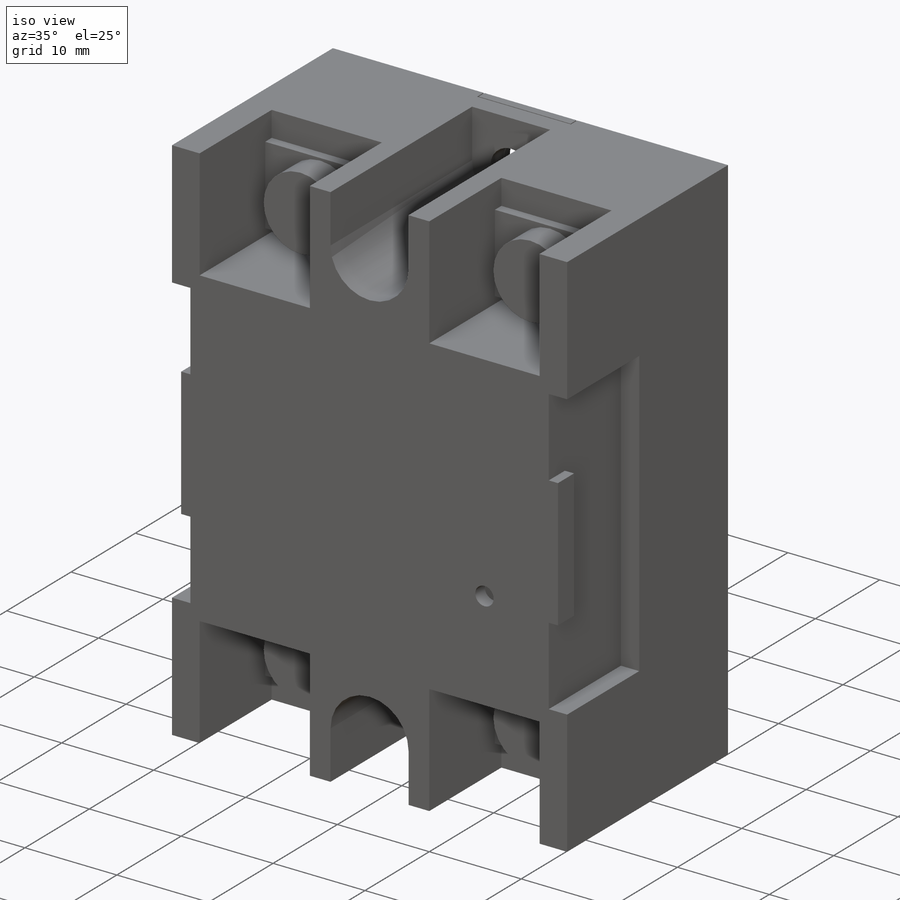
[diagram: iso view]
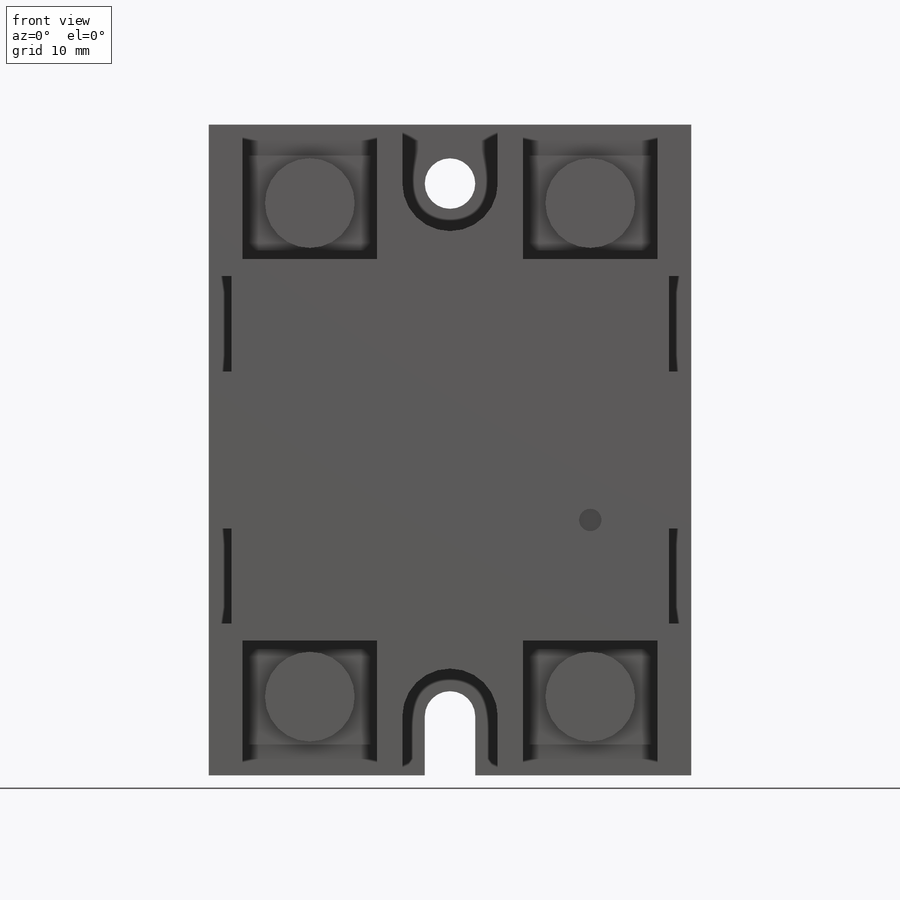
[diagram: front view]
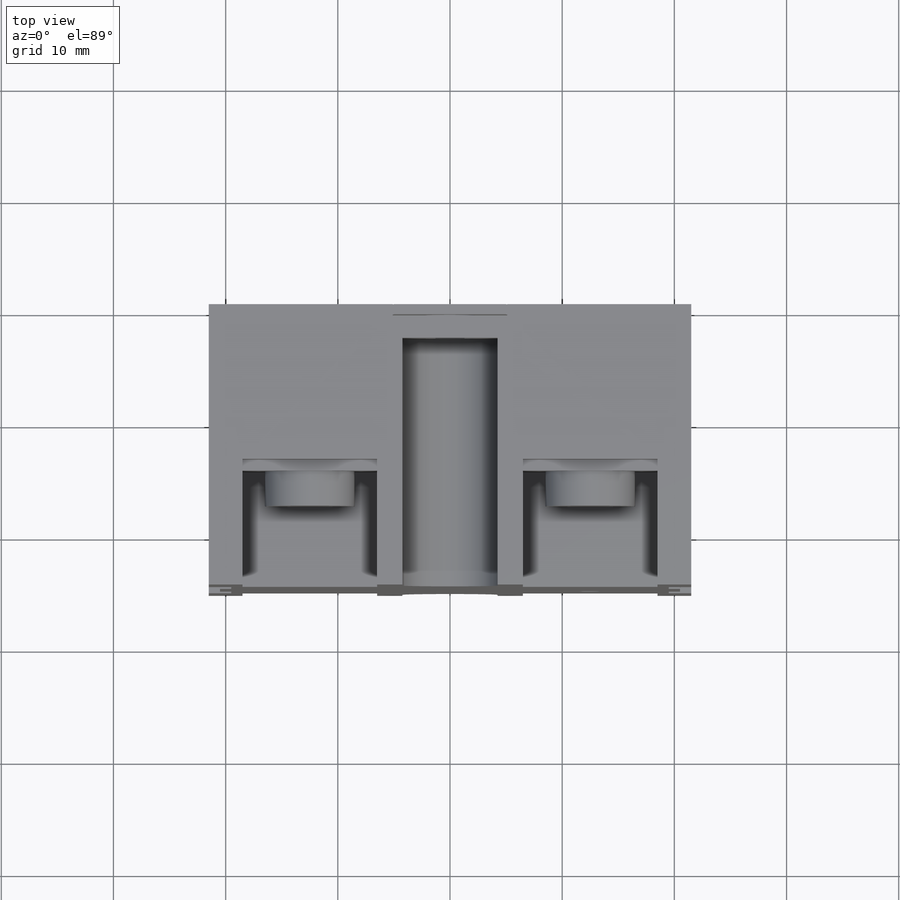
[diagram: top view]
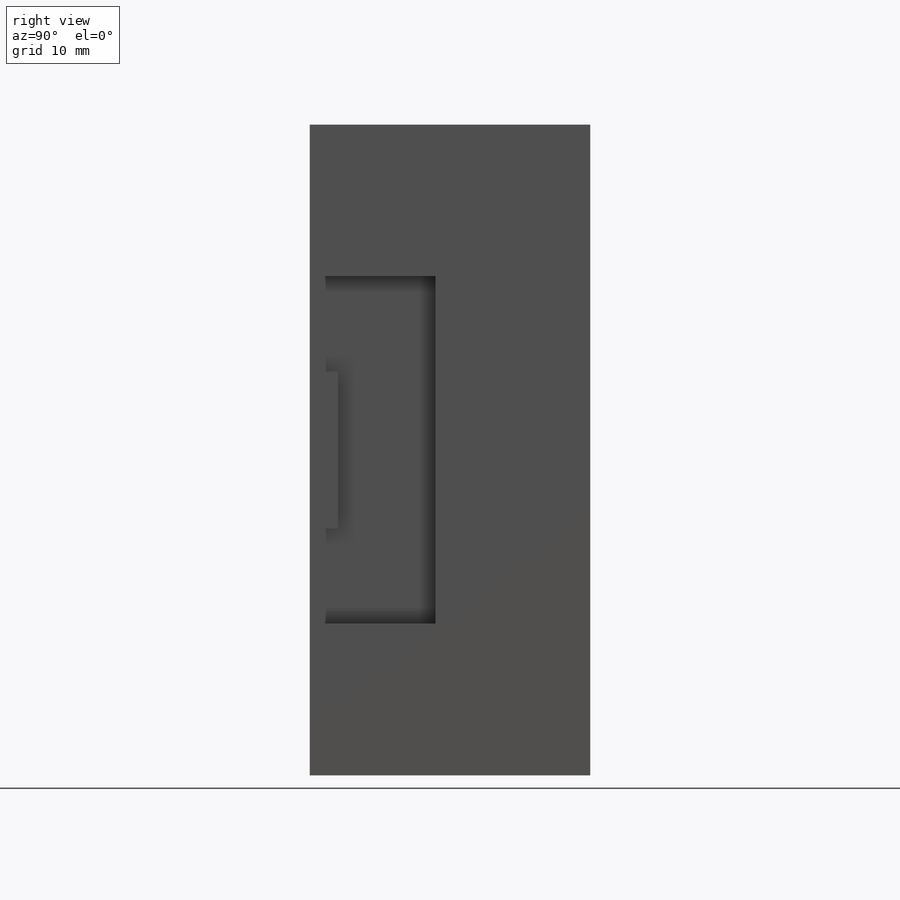
[diagram: right view]
SOLIDWORKS PART (.sldprt)
format: sldprt  version: not decoded by parser v0  size: 763,904 bytes
history: native  units: mm
features: sketch x36, extrude x14, cut_extrude x12, plane x5, revolve x4, hole x3, material x1 (+13 scaffold rows collapsed)
feature tree (88):
  scaffold x13  (default folders/planes/origin — collapsed)
  material  "Polyester Resin"
  plane  "Plane1"
  sketch  "Sketch1"
  extrude  "Boss-Extrude1"  Depth=1mm
  plane  "Plane2"  Offset=1mm
  sketch  "Sketch2"
  extrude  "Boss-Extrude2"  Depth=24mm
  sketch  "Sketch3"
  extrude  "Boss-Extrude3"  Depth=1mm
  sketch  "Sketch4"
  extrude  "Boss-Extrude4"  Depth=1mm
  sketch  "Sketch5"
  extrude  "Boss-Extrude5"  Depth=1mm
  plane  "Plane3"  Offset=1mm
  sketch  "Sketch6"
  cut_extrude  "Cut-Extrude1"  Depth=0.1mm
  sketch  "Sketch7"
  cut_extrude  "Cut-Extrude2"  Depth=0.1mm
  sketch  "Sketch8"
  extrude  "Boss-Extrude6"  Depth=8.4mm
  sketch  "Sketch9"
  extrude  "Boss-Extrude7"  Depth=1.5mm
  sketch  "Sketch10"
  extrude  "Boss-Extrude8"  Depth=1.5mm
  sketch  "Sketch11"
  cut_extrude  "Cut-Extrude3"  Depth=12mm
  sketch  "Sketch12"
  extrude  "Boss-Extrude9"  Depth=12mm
  sketch  "Sketch13"
  cut_extrude  "Cut-Extrude4"  Depth=12mm
  sketch  "Sketch14"
  extrude  "Boss-Extrude10"  Depth=12mm
  sketch  "Sketch15"
  cut_extrude  "Cut-Extrude5"  Depth=12mm
  sketch  "Sketch16"
  extrude  "Boss-Extrude11"  Depth=12mm
  sketch  "Sketch17"
  cut_extrude  "Cut-Extrude6"  Depth=12mm
  sketch  "Sketch18"
  extrude  "Boss-Extrude12"  Depth=12mm
  sketch  "Sketch19"
  cut_extrude  "Cut-Extrude7"  Depth=22mm
  sketch  "Sketch20"
  cut_extrude  "Cut-Extrude8"  Depth=2mm
  sketch  "Sketch21"
  cut_extrude  "Cut-Extrude9"  Depth=0.9mm
  sketch  "Sketch22"
  cut_extrude  "Cut-Extrude10"  Depth=2mm
  sketch  "Sketch23"
  extrude  "Boss-Extrude13"  Depth=1mm
  sketch  "Sketch24"
  cut_extrude  "Cut-Extrude11"  Depth=2mm
  sketch  "Sketch25"
  extrude  "Boss-Extrude14"  Depth=1mm
  sketch  "Sketch26"
  cut_extrude  "Cut-Extrude12"  Depth=22mm
  plane  "Plane4"
  sketch  "Sketch27"
  revolve  "Revolve1"  Angle=360deg
  plane  "Plane5"  Offset=44mm
  sketch  "Sketch28"
  revolve  "Revolve2"  Angle=360deg
  sketch  "Sketch29"
  revolve  "Revolve3"  Angle=360deg
  sketch  "Sketch30"
  revolve  "Revolve4"  Angle=360deg
  hole  "Ø2.0 (2) Diameter Hole1"  Diameter=2mm Depth=1.5mm
  sketch  "Sketch32"
  sketch  "Sketch31"  dims[hole-wizard template sketch: 47 standard entries collapsed; hole parameters kept: c15.Hole Depth=1.5mm c15.D3=~14.816244mm c15.Drill Angle=180.0deg]
  hole  "Ø4.5 (4.5) Diameter Hole1"  Diameter=4.5mm Depth=0.9mm
  sketch  "Sketch34"
  sketch  "Sketch33"  dims[hole-wizard template sketch: 60 standard entries collapsed; hole parameters kept: c18.Thru Hole Depth=0.9mm]
  hole  "Ø4.5 (4.5) Diameter Hole2"  Diameter=4.5mm Depth=24mm
  sketch  "Sketch36"
  sketch  "Sketch35"  dims[hole-wizard template sketch: 60 standard entries collapsed; hole parameters kept: c18.Thru Hole Depth=24.0mm]
decode coverage: 36 of 69 modeling features carry decoded parameters
note: ~ marks probable driven/reference dimensions
note: suppression state not decoded; provenance and decode notes live in map.json
